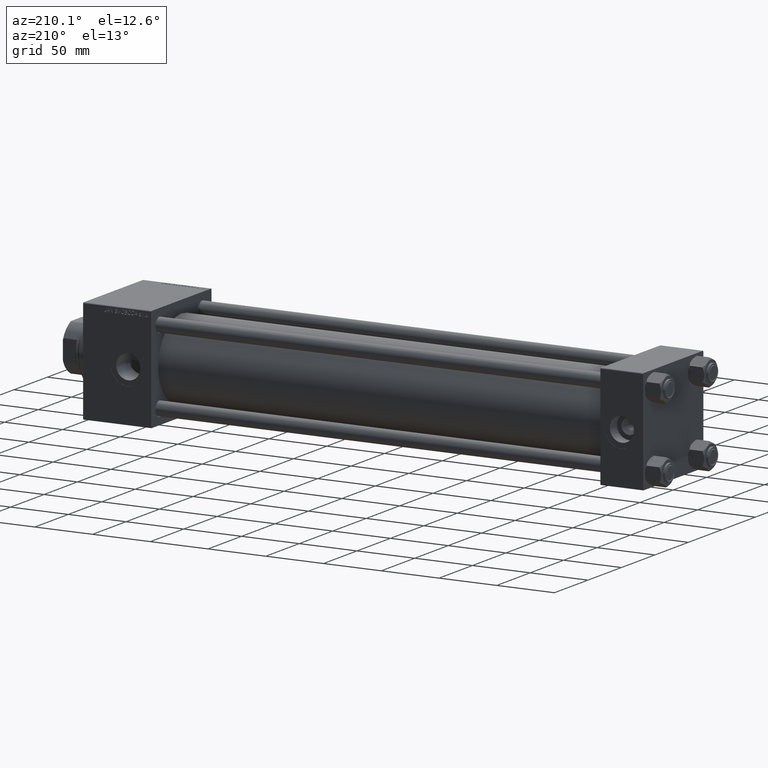
[diagram: clean part render]
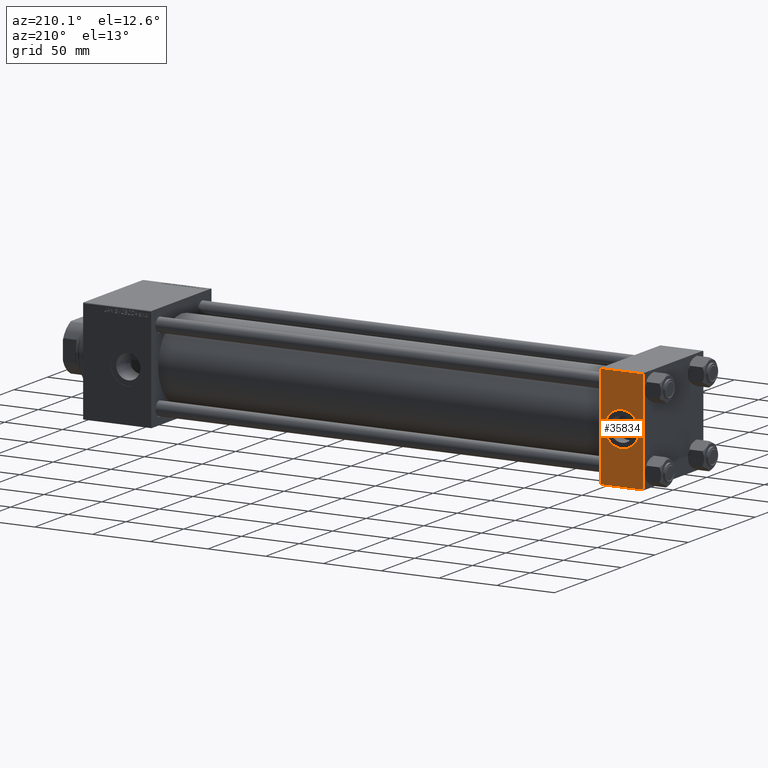
[diagram: same view with one face highlighted and labeled with its STEP entity id]
A machine part, auxiliary view. The second image highlights one B-rep face of the part: STEP entity #35834.
In plain terms, the highlighted planar face has unit normal (0, 1, 0).
Its self-contained STEP definition (entity closure, byte-faithful):
#174 = EDGE_CURVE ( 'NONE', #14641, #23012, #29527, .T. ) ;
#464 = DIRECTION ( 'NONE',  ( 0.000000000000000000, -0.000000000000000000, 1.000000000000000000 ) ) ;
#2084 = AXIS2_PLACEMENT_3D ( 'NONE', #30311, #14784, #49628 ) ;
#3804 = CARTESIAN_POINT ( 'NONE',  ( 37.00000000000000000, 44.99999999999998579, 44.50000000000001421 ) ) ;
#5311 = CIRCLE ( 'NONE', #2084, 15.00000000000000178 ) ;
#8605 = EDGE_LOOP ( 'NONE', ( #17332, #45267, #42282, #43234 ) ) ;
#8957 = VERTEX_POINT ( 'NONE', #9752 ) ;
#9273 = VECTOR ( 'NONE', #15205, 1000.000000000000000 ) ;
#9752 = CARTESIAN_POINT ( 'NONE',  ( 0.000000000000000000, 44.99999999999998579, -44.49999999999995737 ) ) ;
#10024 = DIRECTION ( 'NONE',  ( 0.000000000000000000, 0.000000000000000000, 1.000000000000000000 ) ) ;
#10418 = EDGE_CURVE ( 'NONE', #23012, #8957, #27419, .T. ) ;
#10886 = LINE ( 'NONE', #29470, #38598 ) ;
#11226 = EDGE_CURVE ( 'NONE', #15414, #8957, #10886, .T. ) ;
#14007 = CARTESIAN_POINT ( 'NONE',  ( 37.00000000000000000, 44.99999999999998579, 45.00000000000001421 ) ) ;
#14209 = AXIS2_PLACEMENT_3D ( 'NONE', #33683, #48686, #10024 ) ;
#14641 = VERTEX_POINT ( 'NONE', #20270 ) ;
#14784 = DIRECTION ( 'NONE',  ( 0.000000000000000000, 1.000000000000000000, 0.000000000000000000 ) ) ;
#15036 = CIRCLE ( 'NONE', #14209, 15.00000000000000178 ) ;
#15205 = DIRECTION ( 'NONE',  ( -1.000000000000000000, 0.000000000000000000, 0.000000000000000000 ) ) ;
#15310 = EDGE_LOOP ( 'NONE', ( #32062, #49587 ) ) ;
#15414 = VERTEX_POINT ( 'NONE', #25499 ) ;
#16046 = VERTEX_POINT ( 'NONE', #35818 ) ;
#17332 = ORIENTED_EDGE ( 'NONE', *, *, #174, .T. ) ;
#18785 = PLANE ( 'NONE',  #22490 ) ;
#18852 = VERTEX_POINT ( 'NONE', #41977 ) ;
#19043 = CARTESIAN_POINT ( 'NONE',  ( 37.00000000000000000, 44.99999999999998579, 45.00000000000001421 ) ) ;
#20270 = CARTESIAN_POINT ( 'NONE',  ( 37.00000000000000000, 44.99999999999998579, 44.50000000000001421 ) ) ;
#20691 = EDGE_CURVE ( 'NONE', #15414, #14641, #26709, .T. ) ;
#22490 = AXIS2_PLACEMENT_3D ( 'NONE', #19043, #34305, #464 ) ;
#22624 = FACE_OUTER_BOUND ( 'NONE', #8605, .T. ) ;
#23012 = VERTEX_POINT ( 'NONE', #44812 ) ;
#25499 = CARTESIAN_POINT ( 'NONE',  ( 0.000000000000000000, 44.99999999999998579, 44.50000000000001421 ) ) ;
#25723 = DIRECTION ( 'NONE',  ( 0.000000000000000000, 0.000000000000000000, -1.000000000000000000 ) ) ;
#26163 = VECTOR ( 'NONE', #38908, 1000.000000000000000 ) ;
#26709 = LINE ( 'NONE', #3804, #26163 ) ;
#27419 = LINE ( 'NONE', #31230, #9273 ) ;
#29470 = CARTESIAN_POINT ( 'NONE',  ( 0.000000000000000000, 44.99999999999998579, 45.00000000000001421 ) ) ;
#29527 = LINE ( 'NONE', #14007, #40765 ) ;
#30311 = CARTESIAN_POINT ( 'NONE',  ( 18.50000000000000000, 44.99999999999998579, 0.000000000000000000 ) ) ;
#31230 = CARTESIAN_POINT ( 'NONE',  ( 37.00000000000000000, 44.99999999999998579, -44.49999999999998579 ) ) ;
#31399 = EDGE_CURVE ( 'NONE', #16046, #18852, #15036, .T. ) ;
#32062 = ORIENTED_EDGE ( 'NONE', *, *, #31399, .F. ) ;
#32578 = EDGE_CURVE ( 'NONE', #18852, #16046, #5311, .T. ) ;
#33683 = CARTESIAN_POINT ( 'NONE',  ( 18.50000000000000000, 44.99999999999998579, 0.000000000000000000 ) ) ;
#34044 = DIRECTION ( 'NONE',  ( 0.000000000000000000, 0.000000000000000000, -1.000000000000000000 ) ) ;
#34305 = DIRECTION ( 'NONE',  ( -0.000000000000000000, 1.000000000000000000, 0.000000000000000000 ) ) ;
#35310 = FACE_BOUND ( 'NONE', #15310, .T. ) ;
#35818 = CARTESIAN_POINT ( 'NONE',  ( 18.50000000000000000, 44.99999999999998579, 15.00000000000000178 ) ) ;
#35834 = ADVANCED_FACE ( 'NONE', ( #35310, #22624 ), #18785, .T. ) ;
#38598 = VECTOR ( 'NONE', #34044, 1000.000000000000000 ) ;
#38908 = DIRECTION ( 'NONE',  ( 1.000000000000000000, 0.000000000000000000, 0.000000000000000000 ) ) ;
#40765 = VECTOR ( 'NONE', #25723, 1000.000000000000000 ) ;
#41977 = CARTESIAN_POINT ( 'NONE',  ( 18.50000000000000355, 44.99999999999998579, -15.00000000000000178 ) ) ;
#42282 = ORIENTED_EDGE ( 'NONE', *, *, #11226, .F. ) ;
#43234 = ORIENTED_EDGE ( 'NONE', *, *, #20691, .T. ) ;
#44812 = CARTESIAN_POINT ( 'NONE',  ( 37.00000000000000000, 44.99999999999998579, -44.49999999999995737 ) ) ;
#45267 = ORIENTED_EDGE ( 'NONE', *, *, #10418, .T. ) ;
#48686 = DIRECTION ( 'NONE',  ( 0.000000000000000000, 1.000000000000000000, 0.000000000000000000 ) ) ;
#49587 = ORIENTED_EDGE ( 'NONE', *, *, #32578, .F. ) ;
#49628 = DIRECTION ( 'NONE',  ( 0.000000000000000000, 0.000000000000000000, 1.000000000000000000 ) ) ;